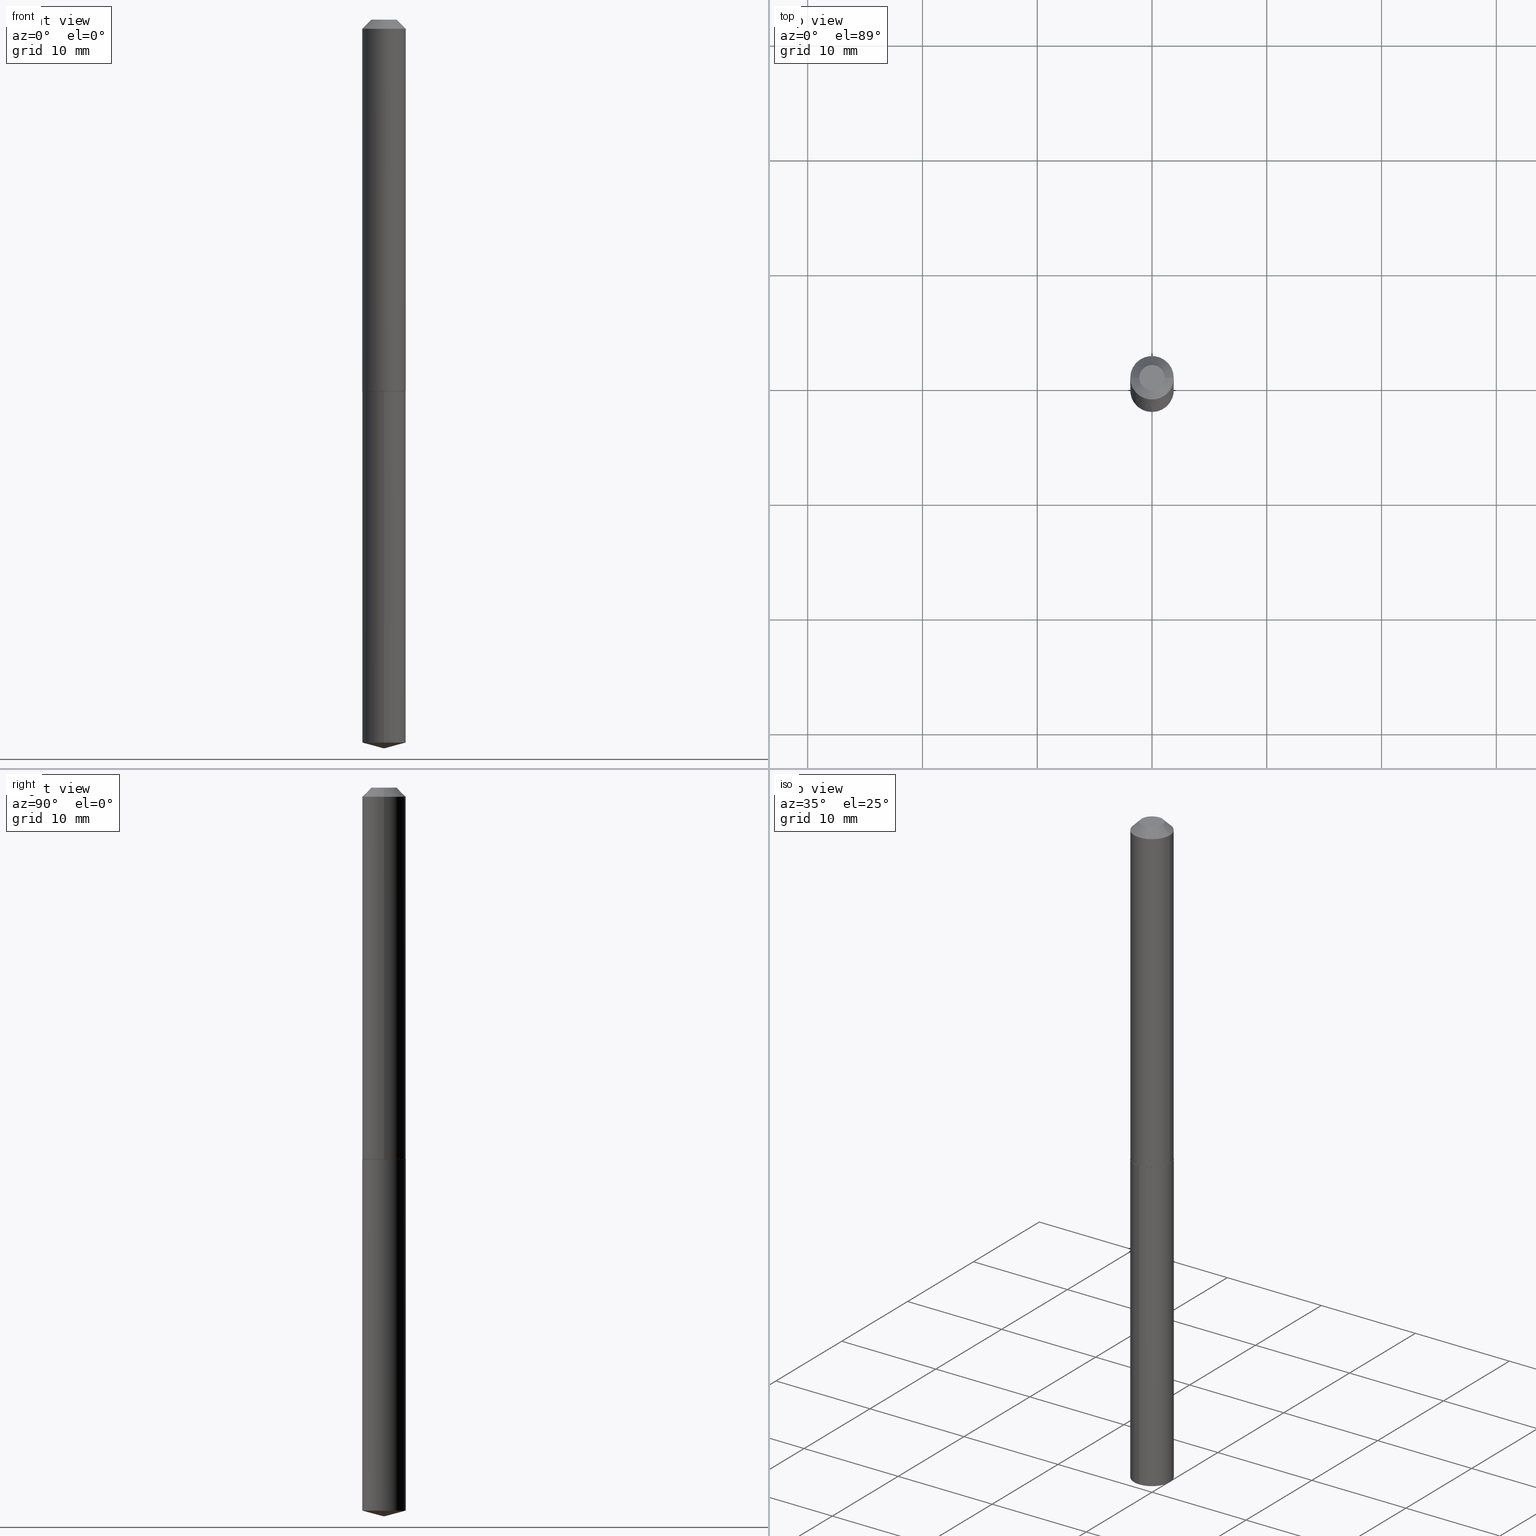
[diagram: canonical four-view strip — front | top / right | iso, engineering-drawing reading convention]
A machine part, canonical four-view strip (front | top / right | iso — engineering-drawing reading convention). The complete STEP part file that produces these views, byte-faithful:
ISO-10303-21;
HEADER;
FILE_DESCRIPTION (( 'STEP AP203' ),
    '1' );
FILE_NAME ('58025.STEP',
    '2024-04-23T00:25:36',
    ( '' ),
    ( '' ),
    'SwSTEP 2.0',
    'SolidWorks 2023',
    '' );
FILE_SCHEMA (( 'CONFIG_CONTROL_DESIGN' ));
ENDSEC;

DATA;
#1 = CLOSED_SHELL ( 'NONE', ( #286, #188, #49, #353, #312 ) ) ;
#2 = APPROVAL_STATUS ( 'not_yet_approved' ) ;
#3 = CARTESIAN_POINT ( 'NONE',  ( 0.000000000000000000, 0.000000000000000000, 0.000000000000000000 ) ) ;
#4 = APPROVAL_STATUS ( 'not_yet_approved' ) ;
#5 = EDGE_CURVE ( 'NONE', #209, #138, #223, .T. ) ;
#6 = DIRECTION ( 'NONE',  ( -1.000000000000000000, 6.982962677686266711E-15, 0.000000000000000000 ) ) ;
#7 = MANIFOLD_SOLID_BREP ( 'Body-Move/Copy2[2]', #58 ) ;
#8 = LINE ( 'NONE', #356, #201 ) ;
#9 = AXIS2_PLACEMENT_3D ( 'NONE', #124, #358, #148 ) ;
#10 = CONICAL_SURFACE ( 'NONE', #14, 0.07475000000000014966, 0.7853981633974568277 ) ;
#11 = ADVANCED_FACE ( 'NONE', ( #25 ), #91, .F. ) ;
#12 = ORIENTED_EDGE ( 'NONE', *, *, #307, .T. ) ;
#13 = CIRCLE ( 'NONE', #310, 0.07425000000000023248 ) ;
#14 = AXIS2_PLACEMENT_3D ( 'NONE', #72, #323, #193 ) ;
#15 = ORIENTED_EDGE ( 'NONE', *, *, #225, .F. ) ;
#16 = CARTESIAN_POINT ( 'NONE',  ( 6.113705085141319034E-29, -8.728656409104144290E-15, -2.500000000000000000 ) ) ;
#17 = EDGE_CURVE ( 'NONE', #111, #289, #143, .T. ) ;
#18 = ORIENTED_EDGE ( 'NONE', *, *, #89, .T. ) ;
#19 = ORIENTED_EDGE ( 'NONE', *, *, #185, .F. ) ;
#20 = CYLINDRICAL_SURFACE ( 'NONE', #128, 0.07475000000000006639 ) ;
#21 = ORIENTED_EDGE ( 'NONE', *, *, #272, .F. ) ;
#22 = DIRECTION ( 'NONE',  ( 6.863315791527702148E-15, 0.9659258262890707547, 0.2588190451025118022 ) ) ;
#23 = FACE_OUTER_BOUND ( 'NONE', #320, .T. ) ;
#24 = DIRECTION ( 'NONE',  ( -2.445481916838262350E-29, 3.491462563641657322E-15, 1.000000000000000000 ) ) ;
#25 = FACE_OUTER_BOUND ( 'NONE', #137, .T. ) ;
#26 = FACE_OUTER_BOUND ( 'NONE', #174, .T. ) ;
#27 = APPROVAL_DATE_TIME ( #301, #119 ) ;
#28 = VECTOR ( 'NONE', #308, 39.37007874015748143 ) ;
#29 = APPROVAL_PERSON_ORGANIZATION ( #92, #119, #100 ) ;
#30 = PERSON_AND_ORGANIZATION ( #338, #297 ) ;
#31 = LINE ( 'NONE', #386, #183 ) ;
#32 = DIRECTION ( 'NONE',  ( -2.445481916838262350E-29, 3.491462563641657322E-15, 1.000000000000000000 ) ) ;
#33 = AXIS2_PLACEMENT_3D ( 'NONE', #354, #359, #271 ) ;
#34 = CARTESIAN_POINT ( 'NONE',  ( -0.07475000000000014966, -3.917016530705492240E-15, -1.274000000000000021 ) ) ;
#35 = EDGE_CURVE ( 'NONE', #198, #349, #326, .T. ) ;
#36 = APPLICATION_PROTOCOL_DEFINITION ( 'international standard', 'config_control_design', 1994, #364 ) ;
#37 = DIRECTION ( 'NONE',  ( -6.982962677686266711E-15, -1.000000000000000000, 3.654646145370252101E-15 ) ) ;
#38 = DIRECTION ( 'NONE',  ( -6.982962677686266711E-15, -1.000000000000000000, 0.000000000000000000 ) ) ;
#39 = AXIS2_PLACEMENT_3D ( 'NONE', #186, #278, #132 ) ;
#40 = DIMENSIONAL_EXPONENTS ( 1.000000000000000000, 0.000000000000000000, 0.000000000000000000, 0.000000000000000000, 0.000000000000000000, 0.000000000000000000, 0.000000000000000000 ) ;
#41 = ORIENTED_EDGE ( 'NONE', *, *, #97, .F. ) ;
#42 = ORIENTED_EDGE ( 'NONE', *, *, #147, .T. ) ;
#43 = DIRECTION ( 'NONE',  ( -6.982962677686266711E-15, -1.000000000000000000, 3.654646145370252101E-15 ) ) ;
#44 = ADVANCED_FACE ( 'NONE', ( #127 ), #57, .F. ) ;
#45 = AXIS2_PLACEMENT_3D ( 'NONE', #236, #362, #93 ) ;
#46 = ORIENTED_EDGE ( 'NONE', *, *, #147, .F. ) ;
#47 = LENGTH_MEASURE_WITH_UNIT ( LENGTH_MEASURE( 0.02539999999999999897 ), #257 );
#48 = VERTEX_POINT ( 'NONE', #389 ) ;
#49 = ADVANCED_FACE ( 'NONE', ( #23 ), #304, .T. ) ;
#50 = ORIENTED_EDGE ( 'NONE', *, *, #185, .T. ) ;
#51 = LINE ( 'NONE', #203, #52 ) ;
#52 = VECTOR ( 'NONE', #335, 39.37007874015748143 ) ;
#53 = LOCAL_TIME ( 20, 25, 36.00000000000000000, #126 ) ;
#54 = EDGE_LOOP ( 'NONE', ( #259, #258, #313, #166 ) ) ;
#55 = CARTESIAN_POINT ( 'NONE',  ( -1.871772216193307361E-48, 2.672394653685577730E-34, 7.654042494670869578E-20 ) ) ;
#56 = PERSON_AND_ORGANIZATION ( #338, #297 ) ;
#57 = PLANE ( 'NONE',  #373 ) ;
#58 = CLOSED_SHELL ( 'NONE', ( #141, #344, #248, #11, #303, #242, #291, #44 ) ) ;
#59 =( NAMED_UNIT ( * ) SI_UNIT ( $, .STERADIAN. ) SOLID_ANGLE_UNIT ( ) );
#60 = VECTOR ( 'NONE', #22, 39.37007874015748854 ) ;
#61 = DATE_TIME_ROLE ( 'creation_date' ) ;
#62 = PERSON_AND_ORGANIZATION ( #338, #297 ) ;
#63 = DIRECTION ( 'NONE',  ( -1.000000000000000000, 6.982962677686265922E-15, -4.876176775795935793E-29 ) ) ;
#64 = EDGE_CURVE ( 'NONE', #112, #114, #157, .T. ) ;
#65 = FACE_OUTER_BOUND ( 'NONE', #167, .T. ) ;
#66 = AXIS2_PLACEMENT_3D ( 'NONE', #71, #32, #38 ) ;
#67 = VECTOR ( 'NONE', #262, 39.37007874015748143 ) ;
#68 = COORDINATED_UNIVERSAL_TIME_OFFSET ( 5, 0, .BEHIND. ) ;
#69 = DIRECTION ( 'NONE',  ( -0.7071067811865535679, 7.493145998870376248E-15, 0.7071067811865414665 ) ) ;
#70 = EDGE_CURVE ( 'NONE', #161, #114, #31, .T. ) ;
#71 = CARTESIAN_POINT ( 'NONE',  ( 6.064707030940299706E-29, -8.658749128667179165E-15, -2.479970797865774124 ) ) ;
#72 = CARTESIAN_POINT ( 'NONE',  ( 3.115527259079864567E-29, -4.448147225686167798E-15, -1.274000000000000021 ) ) ;
#73 = ORIENTED_EDGE ( 'NONE', *, *, #64, .T. ) ;
#74 = EDGE_CURVE ( 'NONE', #191, #138, #86, .T. ) ;
#75 = ORIENTED_EDGE ( 'NONE', *, *, #70, .T. ) ;
#76 = CARTESIAN_POINT ( 'NONE',  ( 5.311306949807357085E-16, 0.07474999999999555611, -1.274500000000000188 ) ) ;
#77 = CIRCLE ( 'NONE', #66, 0.07474999999999999700 ) ;
#78 = APPROVAL_PERSON_ORGANIZATION ( #56, #300, #269 ) ;
#79 = EDGE_LOOP ( 'NONE', ( #136, #251, #84, #115 ) ) ;
#80 = CYLINDRICAL_SURFACE ( 'NONE', #172, 0.07474999999999999700 ) ;
#81 = EDGE_CURVE ( 'NONE', #289, #111, #13, .T. ) ;
#82 = DIRECTION ( 'NONE',  ( -2.445468806185136877E-29, 3.491481338843145188E-15, 1.000000000000000000 ) ) ;
#83 = CARTESIAN_POINT ( 'NONE',  ( 0.000000000000000000, 0.000000000000000000, 0.000000000000000000 ) ) ;
#84 = ORIENTED_EDGE ( 'NONE', *, *, #74, .F. ) ;
#85 = CARTESIAN_POINT ( 'NONE',  ( 0.04349999999999999700, -4.601813400376663043E-16, 1.530808498960878619E-19 ) ) ;
#86 = CIRCLE ( 'NONE', #245, 0.07474999999999999700 ) ;
#87 = AXIS2_PLACEMENT_3D ( 'NONE', #106, #103, #37 ) ;
#88 = DIRECTION ( 'NONE',  ( -2.445481916838262350E-29, 3.491462563641657322E-15, 1.000000000000000000 ) ) ;
#89 = EDGE_CURVE ( 'NONE', #114, #198, #363, .T. ) ;
#90 = CALENDAR_DATE ( 2024, 22, 4 ) ;
#91 = PLANE ( 'NONE',  #287 ) ;
#92 = PERSON_AND_ORGANIZATION ( #338, #297 ) ;
#93 = DIRECTION ( 'NONE',  ( 1.000000000000000000, -6.982962677686270655E-15, 0.000000000000000000 ) ) ;
#94 = CARTESIAN_POINT ( 'NONE',  ( -5.219764601570172411E-16, -0.07475000000000445177, -1.274499999999999744 ) ) ;
#95 = CIRCLE ( 'NONE', #108, 0.07474999999999999700 ) ;
#96 = CIRCLE ( 'NONE', #247, 0.07474999999999999700 ) ;
#97 = EDGE_CURVE ( 'NONE', #114, #112, #77, .T. ) ;
#98 = CARTESIAN_POINT ( 'NONE',  ( 0.07425000000000023248, -4.968377945173796372E-15, -1.274499999999999966 ) ) ;
#99 = DESIGN_CONTEXT ( 'detailed design', #266, 'design' ) ;
#100 = APPROVAL_ROLE ( '' ) ;
#101 = CC_DESIGN_PERSON_AND_ORGANIZATION_ASSIGNMENT ( #121, #232, ( #155 ) ) ;
#102 = CARTESIAN_POINT ( 'NONE',  ( 0.07474999999999999700, -6.310852519958974032E-16, -0.03125000000000019429 ) ) ;
#103 = DIRECTION ( 'NONE',  ( -2.445481916838262350E-29, 3.491462563641657322E-15, 1.000000000000000000 ) ) ;
#104 = DIRECTION ( 'NONE',  ( 2.445468806185136597E-29, -3.491481338843145583E-15, -1.000000000000000000 ) ) ;
#105 = CARTESIAN_POINT ( 'NONE',  ( 0.07475000000000006639, -5.219764601570489928E-16, 3.644942139907465396E-30 ) ) ;
#106 = CARTESIAN_POINT ( 'NONE',  ( 3.116749993482956808E-29, -4.449892966355589302E-15, -1.274499999999999966 ) ) ;
#107 = CONICAL_SURFACE ( 'NONE', #178, 0.07475000000000014966, 0.7853981633974568277 ) ;
#108 = AXIS2_PLACEMENT_3D ( 'NONE', #151, #142, #149 ) ;
#109 = CC_DESIGN_APPROVAL ( #370, ( #220 ) ) ;
#110 = EDGE_CURVE ( 'NONE', #288, #191, #246, .T. ) ;
#111 = VERTEX_POINT ( 'NONE', #98 ) ;
#112 = VERTEX_POINT ( 'NONE', #250 ) ;
#113 = ORIENTED_EDGE ( 'NONE', *, *, #74, .T. ) ;
#114 = VERTEX_POINT ( 'NONE', #372 ) ;
#115 = ORIENTED_EDGE ( 'NONE', *, *, #110, .F. ) ;
#116 = CARTESIAN_POINT ( 'NONE',  ( 3.116749993482956808E-29, -4.449892966355589302E-15, -1.274499999999999966 ) ) ;
#117 = DIRECTION ( 'NONE',  ( 1.000000000000000000, -6.982962677686266711E-15, 0.000000000000000000 ) ) ;
#118 = AXIS2_PLACEMENT_3D ( 'NONE', #213, #154, #207 ) ;
#119 = APPROVAL ( #2, 'UNSPECIFIED' ) ;
#120 = DIRECTION ( 'NONE',  ( -6.982962677686265133E-15, -1.000000000000000000, 3.654646145370252101E-15 ) ) ;
#121 = PERSON_AND_ORGANIZATION ( #338, #297 ) ;
#122 = DIRECTION ( 'NONE',  ( 1.000000000000000000, -6.982962677686266711E-15, 0.000000000000000000 ) ) ;
#123 = DIRECTION ( 'NONE',  ( 1.000000000000000000, 0.000000000000000000, 0.000000000000000000 ) ) ;
#124 = CARTESIAN_POINT ( 'NONE',  ( 3.115527259079864567E-29, -4.448147225686167798E-15, -1.274000000000000021 ) ) ;
#125 = CARTESIAN_POINT ( 'NONE',  ( 6.064707030940299706E-29, -8.658749128667179165E-15, -2.479970797865774124 ) ) ;
#126 = COORDINATED_UNIVERSAL_TIME_OFFSET ( 5, 0, .BEHIND. ) ;
#127 = FACE_OUTER_BOUND ( 'NONE', #260, .T. ) ;
#128 = AXIS2_PLACEMENT_3D ( 'NONE', #83, #219, #199 ) ;
#129 = ORIENTED_EDGE ( 'NONE', *, *, #81, .F. ) ;
#130 = DIRECTION ( 'NONE',  ( 1.000000000000000000, -6.982962677686270655E-15, 0.000000000000000000 ) ) ;
#131 = PERSON_AND_ORGANIZATION_ROLE ( 'creator' ) ;
#132 = DIRECTION ( 'NONE',  ( -6.982962677686267499E-15, -1.000000000000000000, 3.510303681827559575E-15 ) ) ;
#133 = MANIFOLD_SOLID_BREP ( 'Body-Move/Copy2[1]', #1 ) ;
#134 = EDGE_CURVE ( 'NONE', #48, #317, #381, .T. ) ;
#135 = ORIENTED_EDGE ( 'NONE', *, *, #89, .F. ) ;
#136 = ORIENTED_EDGE ( 'NONE', *, *, #158, .T. ) ;
#137 = EDGE_LOOP ( 'NONE', ( #218, #129 ) ) ;
#138 = VERTEX_POINT ( 'NONE', #156 ) ;
#139 = EDGE_LOOP ( 'NONE', ( #19, #383, #292, #254 ) ) ;
#140 = CARTESIAN_POINT ( 'NONE',  ( 3.116749993482956808E-29, -4.449892966355589302E-15, -1.274499999999999966 ) ) ;
#141 = ADVANCED_FACE ( 'NONE', ( #65 ), #171, .T. ) ;
#142 = DIRECTION ( 'NONE',  ( -2.445481916838262350E-29, 3.491462563641657322E-15, 1.000000000000000000 ) ) ;
#143 = CIRCLE ( 'NONE', #33, 0.07425000000000023248 ) ;
#144 = PERSON_AND_ORGANIZATION ( #338, #297 ) ;
#145 = COORDINATED_UNIVERSAL_TIME_OFFSET ( 5, 0, .BEHIND. ) ;
#146 = CARTESIAN_POINT ( 'NONE',  ( 3.116749993482956808E-29, -4.449892966355589302E-15, -1.274499999999999966 ) ) ;
#147 = EDGE_CURVE ( 'NONE', #317, #191, #8, .T. ) ;
#148 = DIRECTION ( 'NONE',  ( 1.000000000000000000, -6.982962677686270655E-15, 0.000000000000000000 ) ) ;
#149 = DIRECTION ( 'NONE',  ( -6.982962677686265133E-15, -1.000000000000000000, 3.654646145370252101E-15 ) ) ;
#150 = LOCAL_TIME ( 20, 25, 36.00000000000000000, #244 ) ;
#151 = CARTESIAN_POINT ( 'NONE',  ( 3.116749993482956808E-29, -4.449892966355589302E-15, -1.274499999999999966 ) ) ;
#152 = PERSON_AND_ORGANIZATION_ROLE ( 'design_owner' ) ;
#153 = CC_DESIGN_PERSON_AND_ORGANIZATION_ASSIGNMENT ( #144, #267, ( #382 ) ) ;
#154 = DIRECTION ( 'NONE',  ( -2.445468806185136597E-29, 3.491481338843145583E-15, 1.000000000000000000 ) ) ;
#155 = SECURITY_CLASSIFICATION ( '', '', #302 ) ;
#156 = CARTESIAN_POINT ( 'NONE',  ( -0.07474999999999999700, -1.747497313781831905E-15, -0.03125000000000019429 ) ) ;
#157 = CIRCLE ( 'NONE', #355, 0.07474999999999999700 ) ;
#158 = EDGE_CURVE ( 'NONE', #288, #209, #296, .T. ) ;
#159 = SHAPE_DEFINITION_REPRESENTATION ( #282, #253 ) ;
#160 = EDGE_LOOP ( 'NONE', ( #221, #285 ) ) ;
#161 = VERTEX_POINT ( 'NONE', #324 ) ;
#162 =( CONVERSION_BASED_UNIT ( 'INCH', #47 ) LENGTH_UNIT ( ) NAMED_UNIT ( #40 ) );
#163 = CIRCLE ( 'NONE', #45, 0.07475000000000014966 ) ;
#164 = CC_DESIGN_SECURITY_CLASSIFICATION ( #155, ( #382 ) ) ;
#165 = EDGE_CURVE ( 'NONE', #209, #288, #163, .T. ) ;
#166 = ORIENTED_EDGE ( 'NONE', *, *, #319, .F. ) ;
#167 = EDGE_LOOP ( 'NONE', ( #346, #42, #113, #345 ) ) ;
#168 = PRODUCT ( '58025', '58025', '', ( #367 ) ) ;
#169 = ORIENTED_EDGE ( 'NONE', *, *, #17, .T. ) ;
#170 = CARTESIAN_POINT ( 'NONE',  ( -0.07474999999999999700, 4.128676683181994484E-16, -0.03125000000000019429 ) ) ;
#171 = CONICAL_SURFACE ( 'NONE', #215, 0.07474999999999999700, 0.7853981633974452814 ) ;
#172 = AXIS2_PLACEMENT_3D ( 'NONE', #197, #24, #43 ) ;
#173 = CARTESIAN_POINT ( 'NONE',  ( -0.07475000000000014966, -3.917016530705492240E-15, -1.274000000000000021 ) ) ;
#174 = EDGE_LOOP ( 'NONE', ( #169, #50, #322, #21 ) ) ;
#175 = EDGE_CURVE ( 'NONE', #112, #349, #51, .T. ) ;
#176 = DIRECTION ( 'NONE',  ( -2.445468806185136597E-29, 3.491481338843145583E-15, 1.000000000000000000 ) ) ;
#177 = CALENDAR_DATE ( 2024, 22, 4 ) ;
#178 = AXIS2_PLACEMENT_3D ( 'NONE', #205, #264, #130 ) ;
#179 = APPROVAL_STATUS ( 'not_yet_approved' ) ;
#180 = CARTESIAN_POINT ( 'NONE',  ( -9.016512754098539056E-28, 1.287304757107857075E-13, 36.87007874015748143 ) ) ;
#181 = LINE ( 'NONE', #173, #279 ) ;
#182 = PERSON_AND_ORGANIZATION_ROLE ( 'creator' ) ;
#183 = VECTOR ( 'NONE', #328, 39.37007874015748143 ) ;
#184 = AXIS2_PLACEMENT_3D ( 'NONE', #284, #104, #214 ) ;
#185 = EDGE_CURVE ( 'NONE', #289, #209, #181, .T. ) ;
#186 = CARTESIAN_POINT ( 'NONE',  ( -9.016512754098539056E-28, 1.287304757107857075E-13, 36.87007874015748143 ) ) ;
#187 = CARTESIAN_POINT ( 'NONE',  ( -0.07425000000000023248, -3.919665757879602652E-15, -1.274499999999999966 ) ) ;
#188 = ADVANCED_FACE ( 'NONE', ( #365 ), #273, .T. ) ;
#189 = DIRECTION ( 'NONE',  ( -2.445468806185136877E-29, 3.491481338843145188E-15, 1.000000000000000000 ) ) ;
#190 = ORIENTED_EDGE ( 'NONE', *, *, #175, .T. ) ;
#191 = VERTEX_POINT ( 'NONE', #102 ) ;
#192 = ORIENTED_EDGE ( 'NONE', *, *, #70, .F. ) ;
#193 = DIRECTION ( 'NONE',  ( 1.000000000000000000, -6.982962677686270655E-15, 0.000000000000000000 ) ) ;
#194 = PRODUCT_RELATED_PRODUCT_CATEGORY ( 'detail', '', ( #168 ) ) ;
#195 = ORIENTED_EDGE ( 'NONE', *, *, #360, .T. ) ;
#196 = ORIENTED_EDGE ( 'NONE', *, *, #35, .F. ) ;
#197 = CARTESIAN_POINT ( 'NONE',  ( 3.116749993482956808E-29, -4.449892966355589302E-15, -1.274499999999999966 ) ) ;
#198 = VERTEX_POINT ( 'NONE', #212 ) ;
#199 = DIRECTION ( 'NONE',  ( 1.000000000000000000, -6.982962677686268288E-15, 4.876176775795935793E-29 ) ) ;
#200 = DATE_AND_TIME ( #202, #211 ) ;
#201 = VECTOR ( 'NONE', #233, 39.37007874015748143 ) ;
#202 = CALENDAR_DATE ( 2024, 22, 4 ) ;
#203 = CARTESIAN_POINT ( 'NONE',  ( 5.311306949807060276E-16, 0.07474999999999555611, -1.274500000000000188 ) ) ;
#204 = DATE_AND_TIME ( #361, #380 ) ;
#205 = CARTESIAN_POINT ( 'NONE',  ( 3.115527259079864567E-29, -4.448147225686167798E-15, -1.274000000000000021 ) ) ;
#206 = DIRECTION ( 'NONE',  ( 0.000000000000000000, 0.000000000000000000, 1.000000000000000000 ) ) ;
#207 = DIRECTION ( 'NONE',  ( 1.000000000000000000, -6.982962677686266711E-15, 4.876200369069454952E-29 ) ) ;
#208 = CC_DESIGN_PERSON_AND_ORGANIZATION_ASSIGNMENT ( #30, #152, ( #168 ) ) ;
#209 = VERTEX_POINT ( 'NONE', #34 ) ;
#210 = DIRECTION ( 'NONE',  ( 1.000000000000000000, -6.982962677686268288E-15, 4.876176775795935793E-29 ) ) ;
#211 = LOCAL_TIME ( 20, 25, 36.00000000000000000, #357 ) ;
#212 = CARTESIAN_POINT ( 'NONE',  ( -5.219764601570171425E-16, -0.07475000000000443789, -1.274499999999999744 ) ) ;
#213 = CARTESIAN_POINT ( 'NONE',  ( -3.743544432386614721E-48, 5.344789307371155460E-34, 1.530808498934173916E-19 ) ) ;
#214 = DIRECTION ( 'NONE',  ( -1.000000000000000000, 6.982962677686266711E-15, 0.000000000000000000 ) ) ;
#215 = AXIS2_PLACEMENT_3D ( 'NONE', #306, #280, #6 ) ;
#216 = APPROVAL_PERSON_ORGANIZATION ( #277, #370, #388 ) ;
#217 = ORIENTED_EDGE ( 'NONE', *, *, #319, .T. ) ;
#218 = ORIENTED_EDGE ( 'NONE', *, *, #17, .F. ) ;
#219 = DIRECTION ( 'NONE',  ( -2.445468806185136597E-29, 3.491481338843145583E-15, 1.000000000000000000 ) ) ;
#220 = PRODUCT_DEFINITION ( 'UNKNOWN', '', #382, #99 ) ;
#221 = ORIENTED_EDGE ( 'NONE', *, *, #35, .T. ) ;
#222 = LINE ( 'NONE', #16, #60 ) ;
#223 = LINE ( 'NONE', #350, #315 ) ;
#224 = DIRECTION ( 'NONE',  ( 6.982962677686265922E-15, 1.000000000000000000, -3.491462563641657716E-15 ) ) ;
#225 = EDGE_CURVE ( 'NONE', #349, #198, #95, .T. ) ;
#226 = ORIENTED_EDGE ( 'NONE', *, *, #134, .F. ) ;
#227 = FACE_OUTER_BOUND ( 'NONE', #160, .T. ) ;
#228 = DIRECTION ( 'NONE',  ( -2.438088387897960049E-29, 3.491481338843145188E-15, 1.000000000000000000 ) ) ;
#229 = DIRECTION ( 'NONE',  ( -2.445468806185136597E-29, 3.491481338843145583E-15, 1.000000000000000000 ) ) ;
#230 = CONICAL_SURFACE ( 'NONE', #184, 0.07474999999999999700, 0.7853981633974452814 ) ;
#231 = DIRECTION ( 'NONE',  ( -6.982962677686266711E-15, -1.000000000000000000, 0.000000000000000000 ) ) ;
#232 = PERSON_AND_ORGANIZATION_ROLE ( 'classification_officer' ) ;
#233 = DIRECTION ( 'NONE',  ( 0.7071067811865453523, -7.319954787623248157E-15, -0.7071067811865496822 ) ) ;
#234 = DIRECTION ( 'NONE',  ( 1.000000000000000000, -6.982962677686268288E-15, 0.000000000000000000 ) ) ;
#235 = LINE ( 'NONE', #243, #347 ) ;
#236 = CARTESIAN_POINT ( 'NONE',  ( 3.115527259079864567E-29, -4.448147225686167798E-15, -1.274000000000000021 ) ) ;
#237 = CARTESIAN_POINT ( 'NONE',  ( 7.642090019328599159E-31, -1.091087918388489774E-16, -0.03125000000000019429 ) ) ;
#238 = APPLICATION_PROTOCOL_DEFINITION ( 'international standard', 'config_control_design', 1994, #266 ) ;
#239 = CIRCLE ( 'NONE', #275, 0.04349999999999999700 ) ;
#240 = FACE_OUTER_BOUND ( 'NONE', #54, .T. ) ;
#241 = DATE_AND_TIME ( #90, #150 ) ;
#242 = ADVANCED_FACE ( 'NONE', ( #240 ), #276, .T. ) ;
#243 = CARTESIAN_POINT ( 'NONE',  ( 0.07475000000000014966, -4.970123685843217876E-15, -1.274000000000000021 ) ) ;
#244 = COORDINATED_UNIVERSAL_TIME_OFFSET ( 5, 0, .BEHIND. ) ;
#245 = AXIS2_PLACEMENT_3D ( 'NONE', #237, #176, #122 ) ;
#246 = LINE ( 'NONE', #105, #343 ) ;
#247 = AXIS2_PLACEMENT_3D ( 'NONE', #385, #293, #117 ) ;
#248 = ADVANCED_FACE ( 'NONE', ( #26 ), #107, .T. ) ;
#249 = CYLINDRICAL_SURFACE ( 'NONE', #87, 0.07474999999999999700 ) ;
#250 = CARTESIAN_POINT ( 'NONE',  ( 5.311306949807354127E-16, 0.07474999999999132339, -2.479970797865774124 ) ) ;
#251 = ORIENTED_EDGE ( 'NONE', *, *, #5, .T. ) ;
#252 = FACE_OUTER_BOUND ( 'NONE', #139, .T. ) ;
#253 = ADVANCED_BREP_SHAPE_REPRESENTATION ( '58025', ( #133, #7, #339 ), #305 ) ;
#254 = ORIENTED_EDGE ( 'NONE', *, *, #165, .F. ) ;
#255 = APPROVAL_DATE_TIME ( #371, #300 ) ;
#256 = EDGE_LOOP ( 'NONE', ( #378, #190, #196, #135 ) ) ;
#257 =( LENGTH_UNIT ( ) NAMED_UNIT ( * ) SI_UNIT ( $, .METRE. ) );
#258 = ORIENTED_EDGE ( 'NONE', *, *, #165, .T. ) ;
#259 = ORIENTED_EDGE ( 'NONE', *, *, #5, .F. ) ;
#260 = EDGE_LOOP ( 'NONE', ( #352, #384 ) ) ;
#261 = DIRECTION ( 'NONE',  ( -2.445481916838262350E-29, 3.491462563641657322E-15, 1.000000000000000000 ) ) ;
#262 = DIRECTION ( 'NONE',  ( -0.7071067811865453523, 2.468850131082234184E-15, -0.7071067811865496822 ) ) ;
#263 = DIRECTION ( 'NONE',  ( -6.982962677686267499E-15, -1.000000000000000000, 3.510303681827559575E-15 ) ) ;
#264 = DIRECTION ( 'NONE',  ( -2.445468806185136597E-29, 3.491481338843145583E-15, 1.000000000000000000 ) ) ;
#265 = AXIS2_PLACEMENT_3D ( 'NONE', #140, #298, #120 ) ;
#266 = APPLICATION_CONTEXT ( 'configuration controlled 3d designs of mechanical parts and assemblies' ) ;
#267 = PERSON_AND_ORGANIZATION_ROLE ( 'design_supplier' ) ;
#268 = CC_DESIGN_PERSON_AND_ORGANIZATION_ASSIGNMENT ( #333, #131, ( #220 ) ) ;
#269 = APPROVAL_ROLE ( '' ) ;
#270 = DIRECTION ( 'NONE',  ( -2.445468806185136597E-29, 3.491481338843145583E-15, 1.000000000000000000 ) ) ;
#271 = DIRECTION ( 'NONE',  ( 1.000000000000000000, -6.982962677686268288E-15, 0.000000000000000000 ) ) ;
#272 = EDGE_CURVE ( 'NONE', #111, #288, #235, .T. ) ;
#273 = CONICAL_SURFACE ( 'NONE', #39, 146.9311341562583948, 1.308996938995752979 ) ;
#274 = CARTESIAN_POINT ( 'NONE',  ( 0.000000000000000000, 0.000000000000000000, 0.000000000000000000 ) ) ;
#275 = AXIS2_PLACEMENT_3D ( 'NONE', #377, #229, #351 ) ;
#276 = CYLINDRICAL_SURFACE ( 'NONE', #327, 0.07475000000000006639 ) ;
#277 = PERSON_AND_ORGANIZATION ( #338, #297 ) ;
#278 = DIRECTION ( 'NONE',  ( -2.445481916838262350E-29, 3.491462563641657322E-15, 1.000000000000000000 ) ) ;
#279 = VECTOR ( 'NONE', #69, 39.37007874015748143 ) ;
#280 = DIRECTION ( 'NONE',  ( 2.445468806185136597E-29, -3.491481338843145583E-15, -1.000000000000000000 ) ) ;
#281 = AXIS2_PLACEMENT_3D ( 'NONE', #321, #295, #224 ) ;
#282 = PRODUCT_DEFINITION_SHAPE ( 'NONE', 'NONE',  #220 ) ;
#283 = EDGE_LOOP ( 'NONE', ( #46, #226, #12, #217 ) ) ;
#284 = CARTESIAN_POINT ( 'NONE',  ( 7.642090019328599159E-31, -1.091087918388489774E-16, -0.03125000000000019429 ) ) ;
#285 = ORIENTED_EDGE ( 'NONE', *, *, #225, .T. ) ;
#286 = ADVANCED_FACE ( 'NONE', ( #366 ), #249, .T. ) ;
#287 = AXIS2_PLACEMENT_3D ( 'NONE', #116, #228, #390 ) ;
#288 = VERTEX_POINT ( 'NONE', #341 ) ;
#289 = VERTEX_POINT ( 'NONE', #187 ) ;
#290 =( NAMED_UNIT ( * ) PLANE_ANGLE_UNIT ( ) SI_UNIT ( $, .RADIAN. ) );
#291 = ADVANCED_FACE ( 'NONE', ( #309 ), #230, .T. ) ;
#292 = ORIENTED_EDGE ( 'NONE', *, *, #272, .T. ) ;
#293 = DIRECTION ( 'NONE',  ( -2.445468806185136597E-29, 3.491481338843145583E-15, 1.000000000000000000 ) ) ;
#294 = EDGE_LOOP ( 'NONE', ( #192, #195, #41 ) ) ;
#295 = DIRECTION ( 'NONE',  ( 2.445481916838261790E-29, -3.491462563641657716E-15, -1.000000000000000000 ) ) ;
#296 = CIRCLE ( 'NONE', #9, 0.07475000000000014966 ) ;
#297 = ORGANIZATION ( 'UNSPECIFIED', 'UNSPECIFIED', '' ) ;
#298 = DIRECTION ( 'NONE',  ( -2.445481916838262350E-29, 3.491462563641657322E-15, 1.000000000000000000 ) ) ;
#299 = LINE ( 'NONE', #170, #67 ) ;
#300 = APPROVAL ( #179, 'UNSPECIFIED' ) ;
#301 = DATE_AND_TIME ( #177, #53 ) ;
#302 = SECURITY_CLASSIFICATION_LEVEL ( 'unclassified' ) ;
#303 = ADVANCED_FACE ( 'NONE', ( #252 ), #10, .T. ) ;
#304 = CONICAL_SURFACE ( 'NONE', #332, 146.9311341562583948, 1.308996938995752979 ) ;
#305 =( GEOMETRIC_REPRESENTATION_CONTEXT ( 3 ) GLOBAL_UNCERTAINTY_ASSIGNED_CONTEXT ( ( #369 ) ) GLOBAL_UNIT_ASSIGNED_CONTEXT ( ( #162, #290, #59 ) ) REPRESENTATION_CONTEXT ( 'NONE', 'WORKASPACE' ) );
#306 = CARTESIAN_POINT ( 'NONE',  ( 7.642090019328599159E-31, -1.091087918388489774E-16, -0.03125000000000019429 ) ) ;
#307 = EDGE_CURVE ( 'NONE', #48, #138, #299, .T. ) ;
#308 = DIRECTION ( 'NONE',  ( -2.445481916838262070E-29, 3.491462563641657716E-15, 1.000000000000000000 ) ) ;
#309 = FACE_OUTER_BOUND ( 'NONE', #283, .T. ) ;
#310 = AXIS2_PLACEMENT_3D ( 'NONE', #146, #270, #234 ) ;
#311 = ORIENTED_EDGE ( 'NONE', *, *, #360, .F. ) ;
#312 = ADVANCED_FACE ( 'NONE', ( #227 ), #379, .F. ) ;
#313 = ORIENTED_EDGE ( 'NONE', *, *, #110, .T. ) ;
#314 = FACE_OUTER_BOUND ( 'NONE', #79, .T. ) ;
#315 = VECTOR ( 'NONE', #82, 39.37007874015748143 ) ;
#316 = CC_DESIGN_APPROVAL ( #300, ( #155 ) ) ;
#317 = VERTEX_POINT ( 'NONE', #85 ) ;
#318 = FACE_OUTER_BOUND ( 'NONE', #376, .T. ) ;
#319 = EDGE_CURVE ( 'NONE', #138, #191, #96, .T. ) ;
#320 = EDGE_LOOP ( 'NONE', ( #311, #75, #375 ) ) ;
#321 = CARTESIAN_POINT ( 'NONE',  ( 3.116749993482956808E-29, -4.449892966355589302E-15, -1.274499999999999966 ) ) ;
#322 = ORIENTED_EDGE ( 'NONE', *, *, #158, .F. ) ;
#323 = DIRECTION ( 'NONE',  ( -2.445468806185136597E-29, 3.491481338843145583E-15, 1.000000000000000000 ) ) ;
#324 = CARTESIAN_POINT ( 'NONE',  ( 6.113704792095656577E-29, -8.728656409104144290E-15, -2.500000000000000000 ) ) ;
#325 = ORIENTED_EDGE ( 'NONE', *, *, #175, .F. ) ;
#326 = CIRCLE ( 'NONE', #265, 0.07474999999999999700 ) ;
#327 = AXIS2_PLACEMENT_3D ( 'NONE', #3, #330, #210 ) ;
#328 = DIRECTION ( 'NONE',  ( -6.745023994389847810E-15, -0.9659258262890689783, 0.2588190451025185745 ) ) ;
#329 = CC_DESIGN_DATE_AND_TIME_ASSIGNMENT ( #241, #61, ( #220 ) ) ;
#330 = DIRECTION ( 'NONE',  ( -2.445468806185136597E-29, 3.491481338843145583E-15, 1.000000000000000000 ) ) ;
#331 = DATE_TIME_ROLE ( 'classification_date' ) ;
#332 = AXIS2_PLACEMENT_3D ( 'NONE', #180, #88, #263 ) ;
#333 = PERSON_AND_ORGANIZATION ( #338, #297 ) ;
#334 = CC_DESIGN_DATE_AND_TIME_ASSIGNMENT ( #200, #331, ( #155 ) ) ;
#335 = DIRECTION ( 'NONE',  ( -2.445481916838262070E-29, 3.491462563641657716E-15, 1.000000000000000000 ) ) ;
#336 = APPROVAL_DATE_TIME ( #204, #370 ) ;
#337 = DIRECTION ( 'NONE',  ( 2.438088387897960049E-29, -3.491481338843145188E-15, -1.000000000000000000 ) ) ;
#338 = PERSON ( 'UNSPECIFIED', 'UNSPECIFIED', 'UNSPECIFIED', ('UNSPECIFIED'), ('UNSPECIFIED'), ('UNSPECIFIED') ) ;
#339 = AXIS2_PLACEMENT_3D ( 'NONE', #274, #206, #123 ) ;
#340 = EDGE_CURVE ( 'NONE', #317, #48, #239, .T. ) ;
#341 = CARTESIAN_POINT ( 'NONE',  ( 0.07475000000000014966, -4.970123685843217876E-15, -1.274000000000000021 ) ) ;
#342 = CALENDAR_DATE ( 2024, 22, 4 ) ;
#343 = VECTOR ( 'NONE', #189, 39.37007874015748143 ) ;
#344 = ADVANCED_FACE ( 'NONE', ( #314 ), #20, .T. ) ;
#345 = ORIENTED_EDGE ( 'NONE', *, *, #307, .F. ) ;
#346 = ORIENTED_EDGE ( 'NONE', *, *, #340, .F. ) ;
#347 = VECTOR ( 'NONE', #387, 39.37007874015748143 ) ;
#348 = CC_DESIGN_APPROVAL ( #119, ( #382 ) ) ;
#349 = VERTEX_POINT ( 'NONE', #76 ) ;
#350 = CARTESIAN_POINT ( 'NONE',  ( -0.07475000000000006639, 5.311306949806753607E-16, -3.676903979965545675E-30 ) ) ;
#351 = DIRECTION ( 'NONE',  ( 1.000000000000000000, -6.982962677686266711E-15, 4.876200369069454952E-29 ) ) ;
#352 = ORIENTED_EDGE ( 'NONE', *, *, #134, .T. ) ;
#353 = ADVANCED_FACE ( 'NONE', ( #318 ), #80, .T. ) ;
#354 = CARTESIAN_POINT ( 'NONE',  ( 3.116749993482956808E-29, -4.449892966355589302E-15, -1.274499999999999966 ) ) ;
#355 = AXIS2_PLACEMENT_3D ( 'NONE', #125, #261, #231 ) ;
#356 = CARTESIAN_POINT ( 'NONE',  ( 0.07474999999999999700, -6.219310171722709366E-16, -0.03125000000000019429 ) ) ;
#357 = COORDINATED_UNIVERSAL_TIME_OFFSET ( 5, 0, .BEHIND. ) ;
#358 = DIRECTION ( 'NONE',  ( -2.445468806185136597E-29, 3.491481338843145583E-15, 1.000000000000000000 ) ) ;
#359 = DIRECTION ( 'NONE',  ( -2.445468806185136597E-29, 3.491481338843145583E-15, 1.000000000000000000 ) ) ;
#360 = EDGE_CURVE ( 'NONE', #161, #112, #222, .T. ) ;
#361 = CALENDAR_DATE ( 2024, 22, 4 ) ;
#362 = DIRECTION ( 'NONE',  ( -2.445468806185136597E-29, 3.491481338843145583E-15, 1.000000000000000000 ) ) ;
#363 = LINE ( 'NONE', #94, #28 ) ;
#364 = APPLICATION_CONTEXT ( 'configuration controlled 3d designs of mechanical parts and assemblies' ) ;
#365 = FACE_OUTER_BOUND ( 'NONE', #294, .T. ) ;
#366 = FACE_OUTER_BOUND ( 'NONE', #256, .T. ) ;
#367 = MECHANICAL_CONTEXT ( 'NONE', #364, 'mechanical' ) ;
#368 = CC_DESIGN_PERSON_AND_ORGANIZATION_ASSIGNMENT ( #62, #182, ( #382 ) ) ;
#369 = UNCERTAINTY_MEASURE_WITH_UNIT (LENGTH_MEASURE( 1.000000000000000082E-05 ), #162, 'distance_accuracy_value', 'NONE');
#370 = APPROVAL ( #4, 'UNSPECIFIED' ) ;
#371 = DATE_AND_TIME ( #342, #374 ) ;
#372 = CARTESIAN_POINT ( 'NONE',  ( -5.219764601569876588E-16, -0.07475000000000864286, -2.479970797865774124 ) ) ;
#373 = AXIS2_PLACEMENT_3D ( 'NONE', #55, #337, #63 ) ;
#374 = LOCAL_TIME ( 20, 25, 36.00000000000000000, #68 ) ;
#375 = ORIENTED_EDGE ( 'NONE', *, *, #64, .F. ) ;
#376 = EDGE_LOOP ( 'NONE', ( #325, #73, #18, #15 ) ) ;
#377 = CARTESIAN_POINT ( 'NONE',  ( -3.743544432386614721E-48, 5.344789307371155460E-34, 1.530808498934173916E-19 ) ) ;
#378 = ORIENTED_EDGE ( 'NONE', *, *, #97, .T. ) ;
#379 = PLANE ( 'NONE',  #281 ) ;
#380 = LOCAL_TIME ( 20, 25, 36.00000000000000000, #145 ) ;
#381 = CIRCLE ( 'NONE', #118, 0.04349999999999999700 ) ;
#382 = PRODUCT_DEFINITION_FORMATION_WITH_SPECIFIED_SOURCE ( 'ANY', '', #168, .NOT_KNOWN. ) ;
#383 = ORIENTED_EDGE ( 'NONE', *, *, #81, .T. ) ;
#384 = ORIENTED_EDGE ( 'NONE', *, *, #340, .T. ) ;
#385 = CARTESIAN_POINT ( 'NONE',  ( 7.642090019328599159E-31, -1.091087918388489774E-16, -0.03125000000000019429 ) ) ;
#386 = CARTESIAN_POINT ( 'NONE',  ( 6.113671373040838440E-29, -8.728704267092737580E-15, -2.500000000000000000 ) ) ;
#387 = DIRECTION ( 'NONE',  ( 0.7071067811865535679, -2.468850131082320169E-15, 0.7071067811865414665 ) ) ;
#388 = APPROVAL_ROLE ( '' ) ;
#389 = CARTESIAN_POINT ( 'NONE',  ( -0.04349999999999999700, 3.583132723987760320E-16, 1.530808498911025682E-19 ) ) ;
#390 = DIRECTION ( 'NONE',  ( 1.000000000000000000, -6.982962677686265922E-15, 4.876176775795935793E-29 ) ) ;
ENDSEC;
END-ISO-10303-21;
